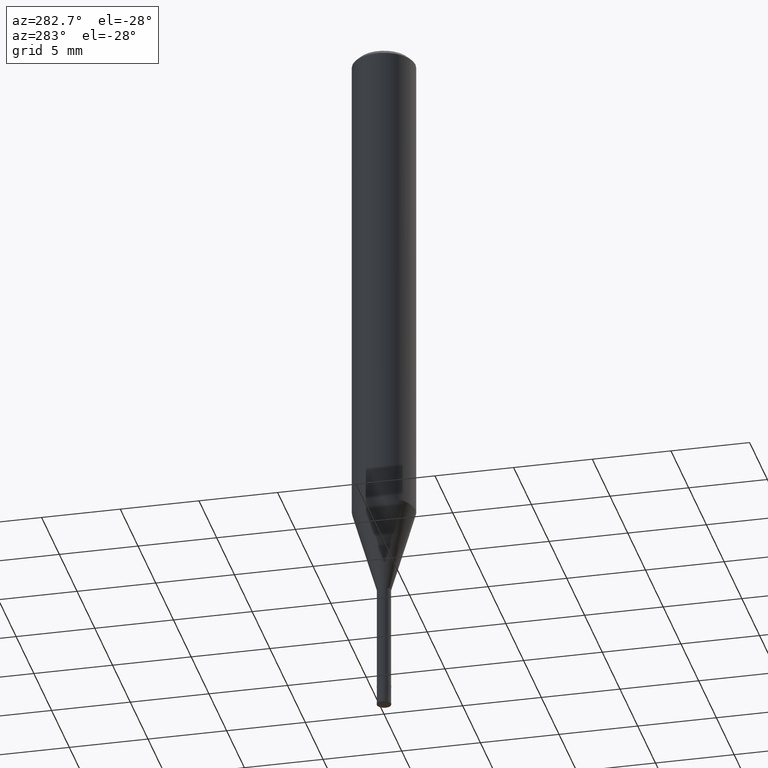
[diagram: clean part render]
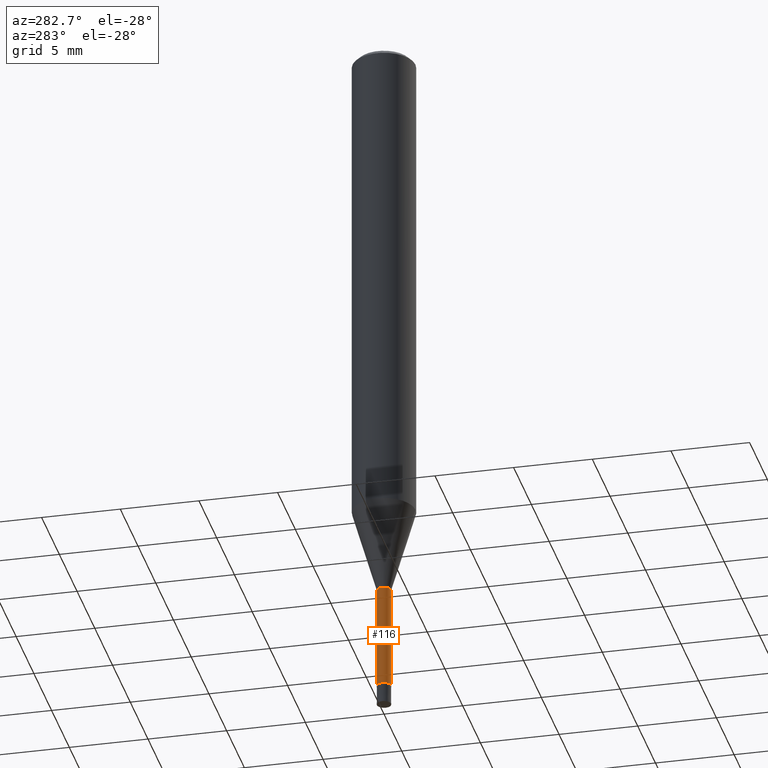
[diagram: same view with one face highlighted and labeled with its STEP entity id]
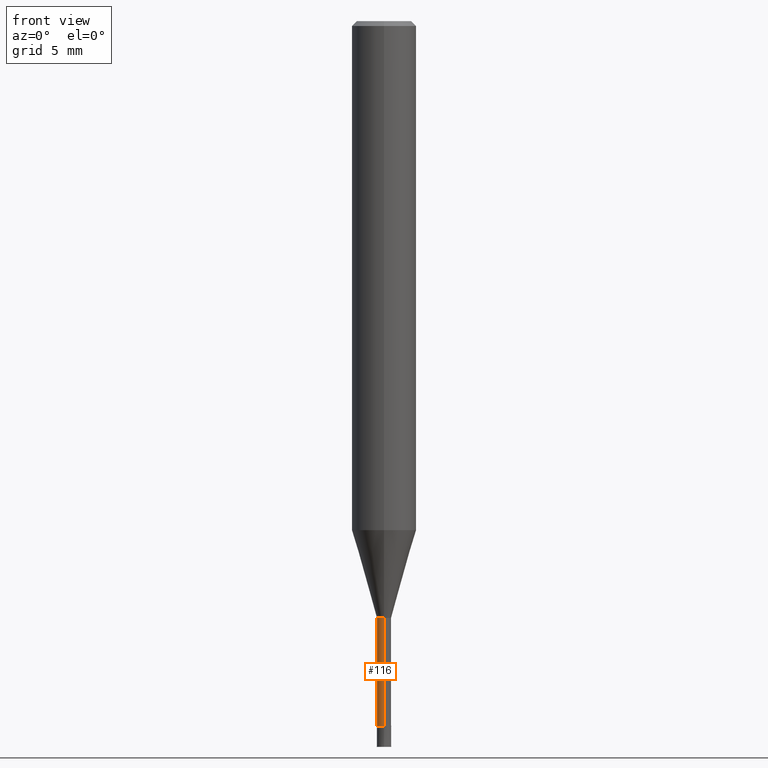
[diagram: same view with one face highlighted and labeled with its STEP entity id]
A machine part, auxiliary view. The second image highlights one B-rep face of the part: STEP entity #116.
A second angle (front view) of the same face is appended — the face is thin or edge-on in the first view.
In plain terms, the highlighted cylindrical surface (edge-blend (fillet) strip) has radius 0.44 mm, axis along (-0, -0, 1).
Its self-contained STEP definition (entity closure, byte-faithful):
#92=VERTEX_POINT('',#229);
#116=ADVANCED_FACE('',(#255),#256,.T.);
#130=VERTEX_POINT('',#272);
#136=EDGE_CURVE('',#208,#92,#279,.T.);
#156=EDGE_CURVE('',#130,#92,#304,.T.);
#158=EDGE_CURVE('',#208,#188,#306,.T.);
#188=VERTEX_POINT('',#338);
#194=EDGE_CURVE('',#188,#130,#345,.T.);
#208=VERTEX_POINT('',#361);
#229=CARTESIAN_POINT('',(0.0,0.43995,-43.7));
#255=FACE_OUTER_BOUND('',#407,.T.);
#256=CYLINDRICAL_SURFACE('',#408,0.43995);
#272=CARTESIAN_POINT('',(0.0,0.43995,-37.0));
#279=CIRCLE('',#437,0.43995);
#304=LINE('',#466,#467);
#306=LINE('',#470,#471);
#338=CARTESIAN_POINT('',(5.38765565364155E-017,-0.43995,-37.0));
#345=CIRCLE('',#519,0.43995);
#361=CARTESIAN_POINT('',(5.38765565364155E-017,-0.43995,-43.7));
#407=EDGE_LOOP('',(#570,#571,#572,#573));
#408=AXIS2_PLACEMENT_3D('',#574,#575,#576);
#437=AXIS2_PLACEMENT_3D('',#602,#603,#604);
#466=CARTESIAN_POINT('',(-5.38765565364155E-017,0.43995,-40.35));
#467=VECTOR('',#639,1.0);
#470=CARTESIAN_POINT('',(5.38765565364155E-017,-0.43995,-40.35));
#471=VECTOR('',#640,1.0);
#519=AXIS2_PLACEMENT_3D('',#685,#686,#687);
#570=ORIENTED_EDGE('',*,*,#156,.T.);
#571=ORIENTED_EDGE('',*,*,#136,.F.);
#572=ORIENTED_EDGE('',*,*,#158,.T.);
#573=ORIENTED_EDGE('',*,*,#194,.T.);
#574=CARTESIAN_POINT('',(0.0,0.0,-40.35));
#575=DIRECTION('',(-0.0,-0.0,1.0));
#576=DIRECTION('',(0.0,1.0,0.0));
#602=CARTESIAN_POINT('',(0.0,0.0,-43.7));
#603=DIRECTION('',(0.0,0.0,-1.0));
#604=DIRECTION('',(0.0,1.0,0.0));
#639=DIRECTION('',(0.0,0.0,-1.0));
#640=DIRECTION('',(-0.0,-0.0,1.0));
#685=CARTESIAN_POINT('',(0.0,0.0,-37.0));
#686=DIRECTION('',(0.0,0.0,-1.0));
#687=DIRECTION('',(0.0,1.0,0.0));